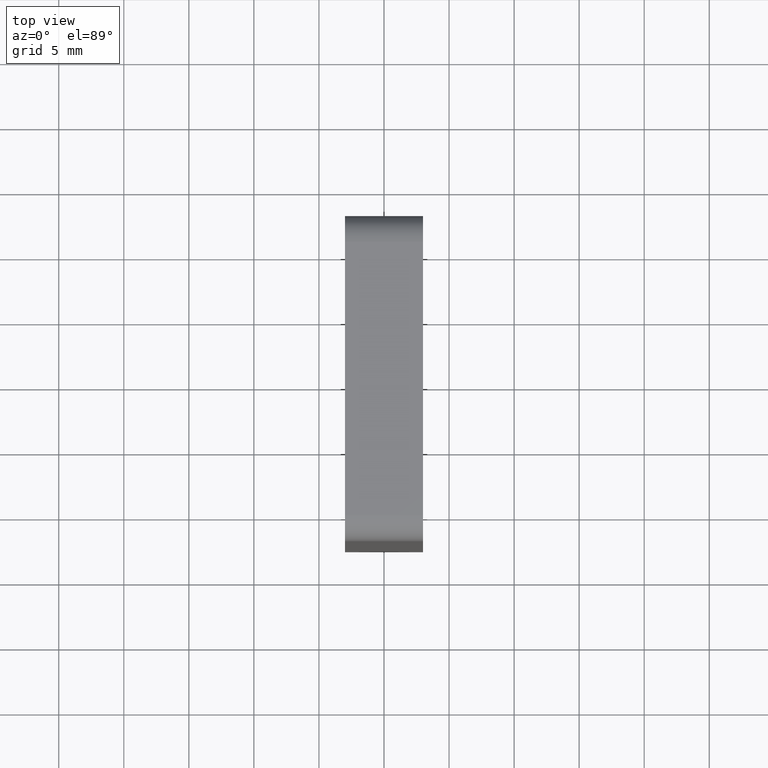
[diagram: clean part render]
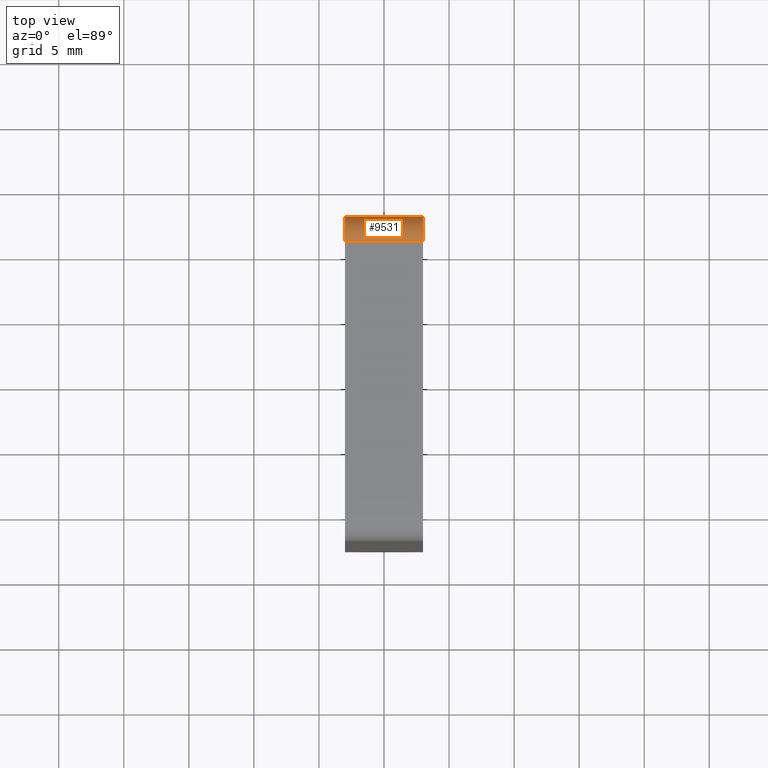
[diagram: same view with one face highlighted and labeled with its STEP entity id]
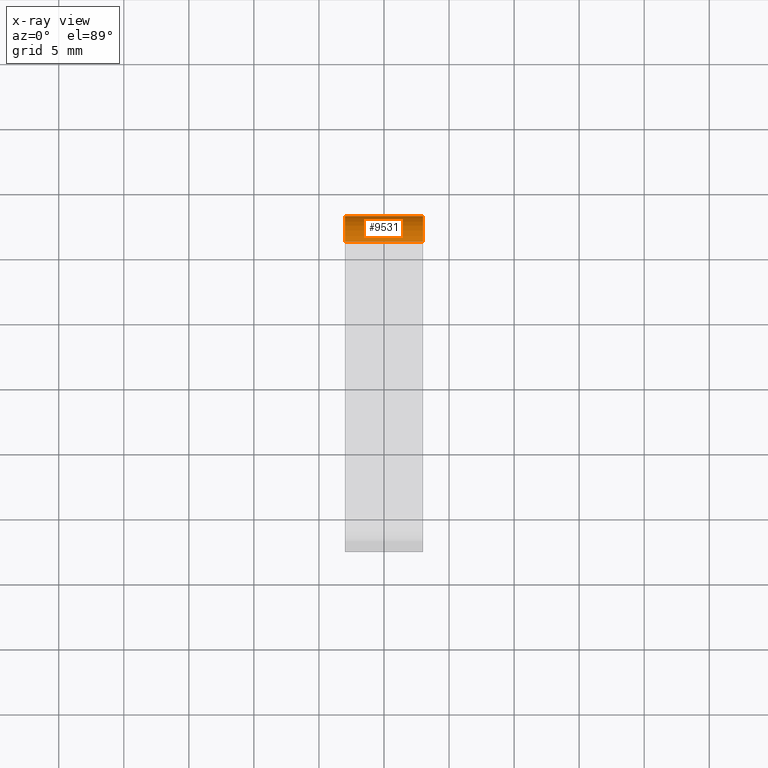
[diagram: x-ray of the same camera — body ghosted, the highlighted face saturated]
A machine part, top view. The second image highlights one B-rep face of the part: STEP entity #9531.
The next image is the same camera in x-ray: the body ghosted, the highlighted face saturated — about 0% of this face is hidden behind the body in this view.
In plain terms, the highlighted cylindrical surface (edge-blend (fillet) strip) has radius 2 mm, axis along (-1, 0, 0).
Its self-contained STEP definition (entity closure, byte-faithful):
#193 = CARTESIAN_POINT ( 'NONE',  ( 3.000000000000000000, 10.49999999999999822, 50.00000000000000000 ) ) ;
#634 = CARTESIAN_POINT ( 'NONE',  ( -3.000000000000000000, 12.50000000000000000, 48.00000000000000000 ) ) ;
#645 = AXIS2_PLACEMENT_3D ( 'NONE', #9241, #5467, #5335 ) ;
#1055 = LINE ( 'NONE', #193, #4475 ) ;
#1268 = VERTEX_POINT ( 'NONE', #2626 ) ;
#1563 = AXIS2_PLACEMENT_3D ( 'NONE', #4150, #6177, #9163 ) ;
#1757 = ORIENTED_EDGE ( 'NONE', *, *, #5079, .F. ) ;
#2626 = CARTESIAN_POINT ( 'NONE',  ( 3.000000000000000000, 12.50000000000000000, 48.00000000000000000 ) ) ;
#3151 = FACE_OUTER_BOUND ( 'NONE', #4766, .T. ) ;
#3191 = CARTESIAN_POINT ( 'NONE',  ( 3.000000000000000000, 12.50000000000000000, 48.00000000000000000 ) ) ;
#3284 = VERTEX_POINT ( 'NONE', #10586 ) ;
#3775 = VECTOR ( 'NONE', #10145, 1000.000000000000000 ) ;
#4150 = CARTESIAN_POINT ( 'NONE',  ( 3.000000000000000000, 10.49999999999999822, 48.00000000000000000 ) ) ;
#4475 = VECTOR ( 'NONE', #11027, 1000.000000000000000 ) ;
#4733 = EDGE_CURVE ( 'NONE', #1268, #3284, #8352, .T. ) ;
#4766 = EDGE_LOOP ( 'NONE', ( #7626, #6908, #4841, #1757 ) ) ;
#4781 = VERTEX_POINT ( 'NONE', #634 ) ;
#4841 = ORIENTED_EDGE ( 'NONE', *, *, #11579, .F. ) ;
#5079 = EDGE_CURVE ( 'NONE', #3284, #11741, #1055, .T. ) ;
#5335 = DIRECTION ( 'NONE',  ( 0.000000000000000000, 0.000000000000000000, 1.000000000000000000 ) ) ;
#5467 = DIRECTION ( 'NONE',  ( -1.000000000000000000, -0.000000000000000000, -0.000000000000000000 ) ) ;
#6147 = CIRCLE ( 'NONE', #645, 2.000000000000001776 ) ;
#6177 = DIRECTION ( 'NONE',  ( -1.000000000000000000, 0.000000000000000000, 0.000000000000000000 ) ) ;
#6496 = CARTESIAN_POINT ( 'NONE',  ( 3.000000000000000000, 10.49999999999999822, 48.00000000000000000 ) ) ;
#6908 = ORIENTED_EDGE ( 'NONE', *, *, #9661, .F. ) ;
#7626 = ORIENTED_EDGE ( 'NONE', *, *, #4733, .F. ) ;
#8120 = CYLINDRICAL_SURFACE ( 'NONE', #1563, 2.000000000000001776 ) ;
#8352 = CIRCLE ( 'NONE', #8728, 2.000000000000001776 ) ;
#8434 = LINE ( 'NONE', #3191, #3775 ) ;
#8437 = DIRECTION ( 'NONE',  ( 0.000000000000000000, 0.000000000000000000, 1.000000000000000000 ) ) ;
#8728 = AXIS2_PLACEMENT_3D ( 'NONE', #6496, #9473, #8437 ) ;
#9163 = DIRECTION ( 'NONE',  ( 0.000000000000000000, 0.000000000000000000, 1.000000000000000000 ) ) ;
#9241 = CARTESIAN_POINT ( 'NONE',  ( -3.000000000000000000, 10.49999999999999822, 48.00000000000000000 ) ) ;
#9473 = DIRECTION ( 'NONE',  ( 1.000000000000000000, 0.000000000000000000, 0.000000000000000000 ) ) ;
#9531 = ADVANCED_FACE ( 'NONE', ( #3151 ), #8120, .T. ) ;
#9661 = EDGE_CURVE ( 'NONE', #4781, #1268, #8434, .T. ) ;
#10145 = DIRECTION ( 'NONE',  ( 1.000000000000000000, -0.000000000000000000, -0.000000000000000000 ) ) ;
#10586 = CARTESIAN_POINT ( 'NONE',  ( 3.000000000000000000, 10.49999999999999822, 50.00000000000000000 ) ) ;
#11027 = DIRECTION ( 'NONE',  ( -1.000000000000000000, 0.000000000000000000, 0.000000000000000000 ) ) ;
#11579 = EDGE_CURVE ( 'NONE', #11741, #4781, #6147, .T. ) ;
#11741 = VERTEX_POINT ( 'NONE', #12834 ) ;
#12834 = CARTESIAN_POINT ( 'NONE',  ( -3.000000000000000000, 10.49999999999999822, 50.00000000000000000 ) ) ;